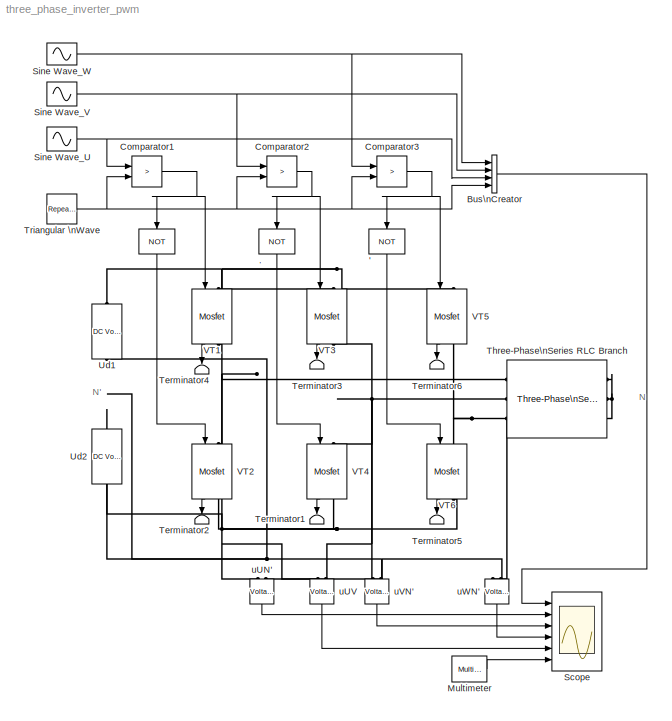
MODEL three_phase_inverter_pwm
KIND model
BLOCK [Logic]  
  AllPortsSameDT = off
  Operator = NOT
  OutDataTypeMode = Boolean
  Ports = [1, 1]
BLOCK [Logic]  '
  AllPortsSameDT = off
  Operator = NOT
  OutDataTypeMode = Boolean
  Ports = [1, 1]
BLOCK [Logic]  .
  AllPortsSameDT = off
  Operator = NOT
  OutDataTypeMode = Boolean
  Ports = [1, 1]
BLOCK [BusCreator] Bus\nCreator
  DialogController = Simulink.DDGSource_Bus
  DisplayOption = bar
  Ports = [4, 1]
BLOCK [RelationalOperator] Comparator1
  InputSameDT = off
  LogicDataType = sint(32)
  LogicOutDataTypeMode = Boolean
  Operator = >
BLOCK [RelationalOperator] Comparator2
  InputSameDT = off
  LogicDataType = sint(32)
  LogicOutDataTypeMode = Boolean
  Operator = >
BLOCK [RelationalOperator] Comparator3
  InputSameDT = off
  LogicDataType = sint(32)
  LogicOutDataTypeMode = Boolean
  Operator = >
BLOCK [Reference] Multimeter  REF=powerlib/Measurements/Multimeter
  AxesSetting = [0,0.1,-100,100]
  Display = 0
  Gain = 1
  L = 6
  OutputType = Complex
  PSBOutputType = 1
  PSBequivalent = 0
  PhasorSimulation = off
  Ports = [0, 1]
  SavedBlockNames = -11
  ShowPortLabels = on
  SourceBlock = powerlib/Measurements/Multimeter
  SourceType = MultimeterPSB
  sel = 1
  yselected = {'Ub1: Three-Phase Series RLC Branch'};
BLOCK [Scope] Scope
  DataFormat = StructureWithTime
  LimitDataPoints = off
  NumInputPorts = 6
  Ports = [6]
  SampleTime = 2e-4
  SaveName = ScopeData1
  TimeRange = 0.03
  YMax = 1.5~200~200~200~300~200
  YMin = -1.5~-200~-200~-200~-300~-200
  ZoomMode = xonly
BLOCK [Sin] Sine Wave_U
  Amplitude = 0.7
  Frequency = 314
  Ports = [0, 1]
  SampleTime = 0
  SineType = Time based
BLOCK [Sin] Sine Wave_V
  Amplitude = 0.7
  Frequency = 314
  Phase = -2*pi/3
  Ports = [0, 1]
  SampleTime = 0
  SineType = Time based
BLOCK [Sin] Sine Wave_W
  Amplitude = 0.7
  Frequency = 314
  Phase = 2*pi/3
  Ports = [0, 1]
  SampleTime = 0
  SineType = Time based
BLOCK [Terminator] Terminator1
BLOCK [Terminator] Terminator2
BLOCK [Terminator] Terminator3
BLOCK [Terminator] Terminator4
BLOCK [Terminator] Terminator5
BLOCK [Terminator] Terminator6
BLOCK [Reference] Three-Phase\nSeries RLC Branch  REF=powerlib/Elements/Three-Phase\nSeries RLC Branch
  AttributesFormatString = \\n
  Capacitance = inf
  Inductance = 0.005
  LConnTagsString = A|B|C
  LeftPortType = p1
  Measurements = Branch voltages and currents
  PhysicalDomain = powersysdomain
  Ports = [0, 0, 0, 0, 0, 3, 3]
  RConnTagsString = A|B|C
  Resistance = 1
  RightPortType = p1
  SourceBlock = powerlib/Elements/Three-Phase\nSeries RLC Branch
  SourceType = Three-Phase Series RLC Branch
  SubClassName = unknown
BLOCK [Reference] Triangular \nWave  REF=simulink/Sources/Repeating\nSequence
  Ports = [0, 1]
  ShowPortLabels = on
  SourceBlock = simulink/Sources/Repeating\nSequence
  SourceType = Repeating table
  rep_seq_t = [0 2.5e-4 5e-4 7.5e-4 1e-3]
  rep_seq_y = [0 1 0 -1 0]
BLOCK [Reference] Ud1  REF=powerlib/Electrical\nSources/DC Voltage Source
  Amplitude = 100
  Measurements = None
  Ports = [0, 0, 0, 0, 0, 1, 1]
  ShowPortLabels = on
  SourceBlock = powerlib/Electrical\nSources/DC Voltage Source
  SourceType = DC Voltage Source
BLOCK [Reference] Ud2  REF=powerlib/Electrical\nSources/DC Voltage Source
  Amplitude = 100
  Measurements = None
  Ports = [0, 0, 0, 0, 0, 1, 1]
  ShowPortLabels = on
  SourceBlock = powerlib/Electrical\nSources/DC Voltage Source
  SourceType = DC Voltage Source
BLOCK [Reference] VT1  REF=powerlib/Power\nElectronics/Mosfet
  Cs = 1e-6
  IC = 0
  Lon = 1e-7
  Measurements = on
  Ports = [1, 1, 0, 0, 0, 1, 1]
  Rd = .01
  Ron = 0.01
  Rs = 5
  ShowPortLabels = on
  SourceBlock = powerlib/Power\nElectronics/Mosfet
  SourceType = Mosfet
BLOCK [Reference] VT2  REF=powerlib/Power\nElectronics/Mosfet
  Cs = 1e-6
  IC = 0
  Lon = 1e-7
  Measurements = on
  Ports = [1, 1, 0, 0, 0, 1, 1]
  Rd = .01
  Ron = 0.01
  Rs = 5
  ShowPortLabels = on
  SourceBlock = powerlib/Power\nElectronics/Mosfet
  SourceType = Mosfet
BLOCK [Reference] VT3  REF=powerlib/Power\nElectronics/Mosfet
  Cs = 1e-6
  IC = 0
  Lon = 1e-7
  Measurements = on
  Ports = [1, 1, 0, 0, 0, 1, 1]
  Rd = .01
  Ron = 0.01
  Rs = 5
  ShowPortLabels = on
  SourceBlock = powerlib/Power\nElectronics/Mosfet
  SourceType = Mosfet
BLOCK [Reference] VT4  REF=powerlib/Power\nElectronics/Mosfet
  Cs = 1e-6
  IC = 0
  Lon = 1e-7
  Measurements = on
  Ports = [1, 1, 0, 0, 0, 1, 1]
  Rd = .01
  Ron = 0.01
  Rs = 5
  ShowPortLabels = on
  SourceBlock = powerlib/Power\nElectronics/Mosfet
  SourceType = Mosfet
BLOCK [Reference] VT5  REF=powerlib/Power\nElectronics/Mosfet
  Cs = 1e-6
  IC = 0
  Lon = 1e-7
  Measurements = on
  Ports = [1, 1, 0, 0, 0, 1, 1]
  Rd = .01
  Ron = 0.01
  Rs = 5
  ShowPortLabels = on
  SourceBlock = powerlib/Power\nElectronics/Mosfet
  SourceType = Mosfet
BLOCK [Reference] VT6  REF=powerlib/Power\nElectronics/Mosfet
  Cs = 1e-6
  IC = 0
  Lon = 1e-7
  Measurements = on
  Ports = [1, 1, 0, 0, 0, 1, 1]
  Rd = .01
  Ron = 0.01
  Rs = 5
  ShowPortLabels = on
  SourceBlock = powerlib/Power\nElectronics/Mosfet
  SourceType = Mosfet
BLOCK [Reference] uUN'  REF=powerlib/Measurements/Voltage Measurement
  OutputType = Complex
  PSBequivalent = 0
  PhasorSimulation = off
  Ports = [0, 1, 0, 0, 0, 2]
  ShowPortLabels = on
  SourceBlock = powerlib/Measurements/Voltage Measurement
  SourceType = Voltage Measurement
BLOCK [Reference] uUV  REF=powerlib/Measurements/Voltage Measurement
  OutputType = Complex
  PSBequivalent = 0
  PhasorSimulation = off
  Ports = [0, 1, 0, 0, 0, 2]
  ShowPortLabels = on
  SourceBlock = powerlib/Measurements/Voltage Measurement
  SourceType = Voltage Measurement
BLOCK [Reference] uVN'  REF=powerlib/Measurements/Voltage Measurement
  OutputType = Complex
  PSBequivalent = 0
  PhasorSimulation = off
  Ports = [0, 1, 0, 0, 0, 2]
  ShowPortLabels = on
  SourceBlock = powerlib/Measurements/Voltage Measurement
  SourceType = Voltage Measurement
BLOCK [Reference] uWN'  REF=powerlib/Measurements/Voltage Measurement
  OutputType = Complex
  PSBequivalent = 0
  PhasorSimulation = off
  Ports = [0, 1, 0, 0, 0, 2]
  ShowPortLabels = on
  SourceBlock = powerlib/Measurements/Voltage Measurement
  SourceType = Voltage Measurement
ANNOTATION (root): N
ANNOTATION (root): N'
LINE  ':1 -> VT6:1
LINE  .:1 -> VT4:1
LINE  :1 -> VT2:1
LINE Bus\nCreator:1 -> Scope:1
NET Comparator1:1 ->  :1, VT1:1
NET Comparator2:1 ->  .:1, VT3:1
NET Comparator3:1 ->  ':1, VT5:1
LINE Multimeter:1 -> Scope:6
NET Sine Wave_U:1 -> Bus\nCreator:3, Comparator1:1
NET Sine Wave_V:1 -> Bus\nCreator:2, Comparator2:1
NET Sine Wave_W:1 -> Bus\nCreator:1, Comparator3:1
NET Triangular \nWave:1 -> Bus\nCreator:4, Comparator1:2, Comparator2:2, Comparator3:2
LINE VT1:1 -> Terminator4:1
LINE VT2:1 -> Terminator2:1
LINE VT3:1 -> Terminator3:1
LINE VT4:1 -> Terminator1:1
LINE VT5:1 -> Terminator6:1
LINE VT6:1 -> Terminator5:1
LINE uUN':1 -> Scope:2
LINE uUV:1 -> Scope:5
LINE uVN':1 -> Scope:3
LINE uWN':1 -> Scope:4
PNET net1: Three-Phase\nSeries RLC Branch:LConn1 -- VT1:RConn1 -- VT2:LConn1 -- uUN':LConn1 -- uUV:LConn1
PNET net2: Three-Phase\nSeries RLC Branch:LConn2 -- VT3:RConn1 -- VT4:LConn1 -- uUV:LConn2 -- uVN':LConn1
PNET net3: Three-Phase\nSeries RLC Branch:LConn3 -- VT5:RConn1 -- VT6:LConn1 -- uWN':LConn1
PNET net4: Three-Phase\nSeries RLC Branch:RConn1 -- Three-Phase\nSeries RLC Branch:RConn2 -- Three-Phase\nSeries RLC Branch:RConn3
PNET net5: Ud1:LConn1 -- Ud2:RConn1 -- uUN':LConn2 -- uVN':LConn2 -- uWN':LConn2
PNET net6: Ud1:RConn1 -- VT1:LConn1 -- VT3:LConn1 -- VT5:LConn1
PNET net7: Ud2:LConn1 -- VT2:RConn1 -- VT4:RConn1 -- VT6:RConn1
note: NET lines group one-source signal fan-out (src -> all destinations, sorted); 1:1 wires keep LINE; PNET lines group multi-terminal physical nets as a canonical sorted terminal list (undirected conserving connections); 2-terminal nets keep the pairwise PLINE form
